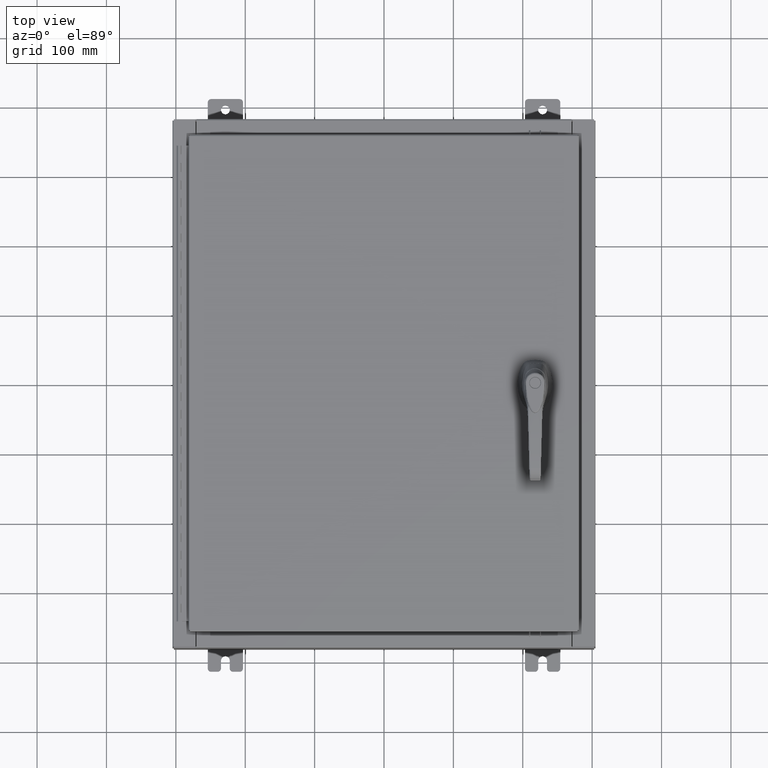
[diagram: clean part render]
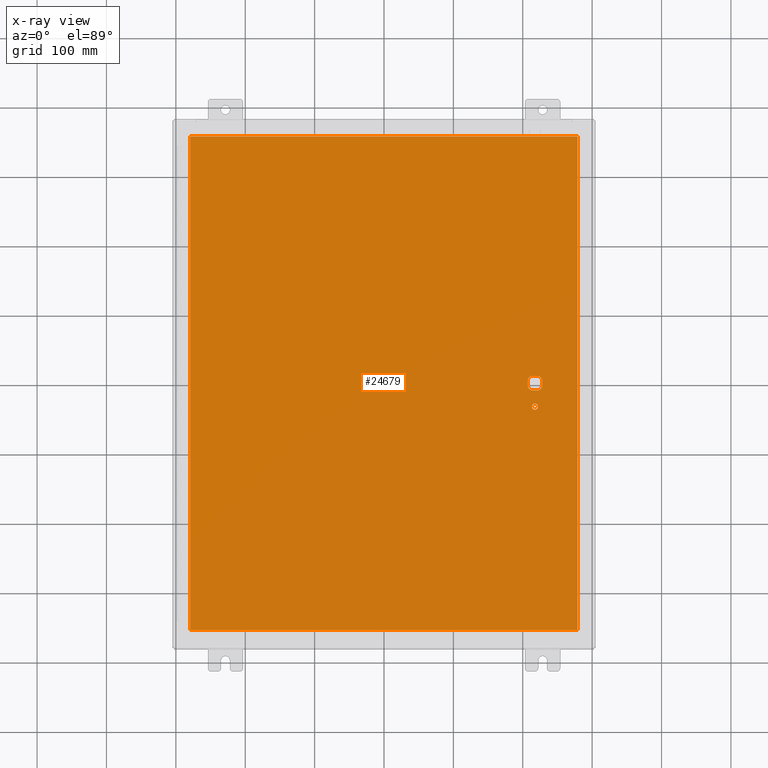
[diagram: x-ray — body ghosted, one internal face saturated and labeled with its STEP entity id]
A machine part, top view, then the same camera in x-ray: the body is ghosted and one INTERNAL B-rep face — a face not visible from any outside direction — is saturated and labeled: STEP entity #24679.
In plain terms, the highlighted planar face has unit normal (0, 0, -1).
Its self-contained STEP definition (entity closure, byte-faithful):
#4082 = AXIS2_PLACEMENT_3D ( 'NONE', #72683, #17764, #81917 ) ;
#4381 = PLANE ( 'NONE',  #40599 ) ;
#4849 = DIRECTION ( 'NONE',  ( -1.000000000000000000, 0.0000000000000000000, 0.0000000000000000000 ) ) ;
#5151 = CARTESIAN_POINT ( 'NONE',  ( 0.0000000000000000000, 0.4029999999999252000, -0.07470000000000003000 ) ) ;
#7073 = EDGE_LOOP ( 'NONE', ( #113550, #79321, #73295, #90613 ) ) ;
#13572 = DIRECTION ( 'NONE',  ( -1.000000000000000000, 0.0000000000000000000, -0.0000000000000000000 ) ) ;
#15467 = CARTESIAN_POINT ( 'NONE',  ( 8.377772629243690300, 0.4029999999999252000, -0.07470000000000003000 ) ) ;
#15975 = DIRECTION ( 'NONE',  ( -0.0000000000000000000, -0.0000000000000000000, 1.000000000000000000 ) ) ;
#17205 = CARTESIAN_POINT ( 'NONE',  ( 8.577999999999999400, 0.0000000000000000000, -0.07470000000000003000 ) ) ;
#17764 = DIRECTION ( 'NONE',  ( -0.0000000000000000000, -0.0000000000000000000, 1.000000000000000000 ) ) ;
#18291 = DIRECTION ( 'NONE',  ( -1.000000000000000000, -0.0000000000000000000, -0.0000000000000000000 ) ) ;
#18485 = DIRECTION ( 'NONE',  ( 0.0000000000000000000, -1.000000000000000000, 0.0000000000000000000 ) ) ;
#19037 = DIRECTION ( 'NONE',  ( 0.0000000000000000000, 1.000000000000000000, 0.0000000000000000000 ) ) ;
#19388 = VERTEX_POINT ( 'NONE', #61626 ) ;
#20414 = VERTEX_POINT ( 'NONE', #33385 ) ;
#21628 = VERTEX_POINT ( 'NONE', #54571 ) ;
#22916 = CIRCLE ( 'NONE', #35095, 0.4499999999999156900 ) ;
#24679 = ADVANCED_FACE ( 'NONE', ( #41071, #46733, #116823 ), #4381, .T. ) ;
#26439 = DIRECTION ( 'NONE',  ( -1.000000000000000000, 8.881784197001256300E-016, 0.0000000000000000000 ) ) ;
#26772 = LINE ( 'NONE', #59983, #78445 ) ;
#27259 = CIRCLE ( 'NONE', #30713, 0.4499999999999156900 ) ;
#27401 = CARTESIAN_POINT ( 'NONE',  ( 8.980999999999925300, -0.2002273707563075900, -0.07470000000000003000 ) ) ;
#30713 = AXIS2_PLACEMENT_3D ( 'NONE', #70870, #15975, #80140 ) ;
#30765 = AXIS2_PLACEMENT_3D ( 'NONE', #38811, #102777, #48019 ) ;
#31611 = EDGE_CURVE ( 'NONE', #56814, #106417, #101728, .T. ) ;
#33385 = CARTESIAN_POINT ( 'NONE',  ( 8.778227370756310300, 0.4029999999999250300, -0.07470000000000003000 ) ) ;
#35095 = AXIS2_PLACEMENT_3D ( 'NONE', #17205, #81362, #26439 ) ;
#35352 = CARTESIAN_POINT ( 'NONE',  ( 8.980999999999925300, 2.450686610769032800E-014, -0.07470000000000003000 ) ) ;
#35492 = LINE ( 'NONE', #46545, #84285 ) ;
#36340 = LINE ( 'NONE', #105482, #82227 ) ;
#37656 = EDGE_CURVE ( 'NONE', #21628, #76617, #77169, .T. ) ;
#37797 = CARTESIAN_POINT ( 'NONE',  ( 8.577999999999999400, 0.0000000000000000000, -0.07470000000000003000 ) ) ;
#37902 = EDGE_CURVE ( 'NONE', #89958, #21628, #35492, .T. ) ;
#38712 = CARTESIAN_POINT ( 'NONE',  ( 8.778227370756310300, -0.4029999999999252000, -0.07470000000000003000 ) ) ;
#38811 = CARTESIAN_POINT ( 'NONE',  ( 8.577999999999999400, -1.338000000000000100, -0.07470000000000003000 ) ) ;
#40331 = DIRECTION ( 'NONE',  ( 1.000000000000000000, -0.0000000000000000000, -0.0000000000000000000 ) ) ;
#40599 = AXIS2_PLACEMENT_3D ( 'NONE', #95651, #68452, #13572 ) ;
#40731 = CARTESIAN_POINT ( 'NONE',  ( -10.99029999999999600, -14.00629999999999800, -0.07470000000000019700 ) ) ;
#40760 = EDGE_CURVE ( 'NONE', #74730, #114186, #69519, .T. ) ;
#41053 = VERTEX_POINT ( 'NONE', #98414 ) ;
#41071 = FACE_BOUND ( 'NONE', #53326, .T. ) ;
#42395 = EDGE_CURVE ( 'NONE', #92956, #89958, #66398, .T. ) ;
#44167 = DIRECTION ( 'NONE',  ( 2.728745808672812900E-015, -1.000000000000000000, 0.0000000000000000000 ) ) ;
#45892 = EDGE_CURVE ( 'NONE', #106417, #48625, #26772, .T. ) ;
#46545 = CARTESIAN_POINT ( 'NONE',  ( -10.99030000000000000, 14.00630000000000100, -0.07470000000000019700 ) ) ;
#46668 = CARTESIAN_POINT ( 'NONE',  ( 8.175000000000073500, -0.2002273707563079800, -0.07470000000000003000 ) ) ;
#46733 = FACE_OUTER_BOUND ( 'NONE', #7073, .T. ) ;
#46972 = DIRECTION ( 'NONE',  ( -1.000000000000000000, 0.0000000000000000000, 0.0000000000000000000 ) ) ;
#48019 = DIRECTION ( 'NONE',  ( -1.000000000000000000, 0.0000000000000000000, 0.0000000000000000000 ) ) ;
#48131 = VECTOR ( 'NONE', #19037, 39.37007874015748100 ) ;
#48625 = VERTEX_POINT ( 'NONE', #46668 ) ;
#50817 = DIRECTION ( 'NONE',  ( 0.0000000000000000000, -1.000000000000000000, 0.0000000000000000000 ) ) ;
#53101 = VERTEX_POINT ( 'NONE', #112196 ) ;
#53326 = EDGE_LOOP ( 'NONE', ( #82231, #105634 ) ) ;
#54571 = CARTESIAN_POINT ( 'NONE',  ( -10.99030000000000000, -14.00629999999999600, -0.07470000000000000300 ) ) ;
#56814 = VERTEX_POINT ( 'NONE', #15467 ) ;
#58413 = EDGE_CURVE ( 'NONE', #48625, #41053, #22916, .T. ) ;
#59698 = DIRECTION ( 'NONE',  ( -0.0000000000000000000, -0.0000000000000000000, 1.000000000000000000 ) ) ;
#59983 = CARTESIAN_POINT ( 'NONE',  ( 8.175000000000073500, 0.0000000000000000000, -0.07470000000000003000 ) ) ;
#60885 = ORIENTED_EDGE ( 'NONE', *, *, #45892, .T. ) ;
#60934 = CARTESIAN_POINT ( 'NONE',  ( -10.99030000000000000, 14.00629999999999800, -0.07470000000000000300 ) ) ;
#61626 = CARTESIAN_POINT ( 'NONE',  ( 8.749500000000001200, -1.338000000000000100, -0.07470000000000003000 ) ) ;
#63254 = ORIENTED_EDGE ( 'NONE', *, *, #40760, .F. ) ;
#64863 = EDGE_CURVE ( 'NONE', #71345, #114186, #27259, .T. ) ;
#66398 = LINE ( 'NONE', #91576, #112183 ) ;
#66616 = VECTOR ( 'NONE', #44167, 39.37007874015748100 ) ;
#67054 = EDGE_LOOP ( 'NONE', ( #112329, #63254, #78111, #67748, #75439, #60885, #68111, #93705 ) ) ;
#67748 = ORIENTED_EDGE ( 'NONE', *, *, #104258, .T. ) ;
#68111 = ORIENTED_EDGE ( 'NONE', *, *, #58413, .T. ) ;
#68452 = DIRECTION ( 'NONE',  ( 0.0000000000000000000, 0.0000000000000000000, -1.000000000000000000 ) ) ;
#69519 = LINE ( 'NONE', #35352, #66616 ) ;
#69736 = CIRCLE ( 'NONE', #30765, 0.1715000000000011500 ) ;
#70183 = LINE ( 'NONE', #5151, #115916 ) ;
#70870 = CARTESIAN_POINT ( 'NONE',  ( 8.577999999999999400, 0.0000000000000000000, -0.07470000000000003000 ) ) ;
#71345 = VERTEX_POINT ( 'NONE', #38712 ) ;
#71392 = EDGE_CURVE ( 'NONE', #41053, #71345, #36340, .T. ) ;
#72683 = CARTESIAN_POINT ( 'NONE',  ( 8.577999999999999400, -1.338000000000000100, -0.07470000000000003000 ) ) ;
#73295 = ORIENTED_EDGE ( 'NONE', *, *, #37902, .F. ) ;
#74730 = VERTEX_POINT ( 'NONE', #88686 ) ;
#75439 = ORIENTED_EDGE ( 'NONE', *, *, #31611, .T. ) ;
#76617 = VERTEX_POINT ( 'NONE', #93371 ) ;
#77169 = LINE ( 'NONE', #40731, #80017 ) ;
#78111 = ORIENTED_EDGE ( 'NONE', *, *, #115114, .T. ) ;
#78445 = VECTOR ( 'NONE', #50817, 39.37007874015748100 ) ;
#78486 = DIRECTION ( 'NONE',  ( -1.000000000000000000, 0.0000000000000000000, 0.0000000000000000000 ) ) ;
#79321 = ORIENTED_EDGE ( 'NONE', *, *, #37656, .F. ) ;
#80017 = VECTOR ( 'NONE', #40331, 39.37007874015748100 ) ;
#80140 = DIRECTION ( 'NONE',  ( -1.000000000000000000, 1.776356839400251300E-015, 0.0000000000000000000 ) ) ;
#81362 = DIRECTION ( 'NONE',  ( -0.0000000000000000000, -0.0000000000000000000, 1.000000000000000000 ) ) ;
#81917 = DIRECTION ( 'NONE',  ( -1.000000000000000000, 0.0000000000000000000, 0.0000000000000000000 ) ) ;
#82022 = EDGE_CURVE ( 'NONE', #53101, #19388, #108096, .T. ) ;
#82227 = VECTOR ( 'NONE', #114652, 39.37007874015748100 ) ;
#82231 = ORIENTED_EDGE ( 'NONE', *, *, #108214, .T. ) ;
#82845 = AXIS2_PLACEMENT_3D ( 'NONE', #37797, #101748, #46972 ) ;
#84285 = VECTOR ( 'NONE', #18485, 39.37007874015748100 ) ;
#86910 = EDGE_CURVE ( 'NONE', #76617, #92956, #105379, .T. ) ;
#87770 = CIRCLE ( 'NONE', #105401, 0.4499999999999156900 ) ;
#88686 = CARTESIAN_POINT ( 'NONE',  ( 8.980999999999925300, 0.2002273707563080300, -0.07470000000000003000 ) ) ;
#89958 = VERTEX_POINT ( 'NONE', #60934 ) ;
#90613 = ORIENTED_EDGE ( 'NONE', *, *, #42395, .F. ) ;
#91576 = CARTESIAN_POINT ( 'NONE',  ( 10.99030000000000000, 14.00629999999999800, -0.07470000000000019700 ) ) ;
#92122 = CARTESIAN_POINT ( 'NONE',  ( 10.99030000000000000, 14.00629999999999800, -0.07470000000000000300 ) ) ;
#92956 = VERTEX_POINT ( 'NONE', #92122 ) ;
#93371 = CARTESIAN_POINT ( 'NONE',  ( 10.99030000000000000, -14.00629999999999800, -0.07470000000000000300 ) ) ;
#93705 = ORIENTED_EDGE ( 'NONE', *, *, #71392, .T. ) ;
#95651 = CARTESIAN_POINT ( 'NONE',  ( 0.0000000000000000000, 0.0000000000000000000, -0.07470000000000000300 ) ) ;
#98414 = CARTESIAN_POINT ( 'NONE',  ( 8.377772629243690300, -0.4029999999999250300, -0.07470000000000003000 ) ) ;
#100345 = CARTESIAN_POINT ( 'NONE',  ( 8.175000000000073500, 0.2002273707563080300, -0.07470000000000003000 ) ) ;
#101475 = CARTESIAN_POINT ( 'NONE',  ( 10.99030000000000000, -14.00629999999999800, -0.07470000000000019700 ) ) ;
#101728 = CIRCLE ( 'NONE', #82845, 0.4499999999999156900 ) ;
#101748 = DIRECTION ( 'NONE',  ( -0.0000000000000000000, -0.0000000000000000000, 1.000000000000000000 ) ) ;
#102777 = DIRECTION ( 'NONE',  ( -0.0000000000000000000, -0.0000000000000000000, 1.000000000000000000 ) ) ;
#104258 = EDGE_CURVE ( 'NONE', #20414, #56814, #70183, .T. ) ;
#105379 = LINE ( 'NONE', #101475, #48131 ) ;
#105401 = AXIS2_PLACEMENT_3D ( 'NONE', #114455, #59698, #4849 ) ;
#105482 = CARTESIAN_POINT ( 'NONE',  ( 0.0000000000000000000, -0.4029999999999252000, -0.07470000000000003000 ) ) ;
#105634 = ORIENTED_EDGE ( 'NONE', *, *, #82022, .T. ) ;
#106417 = VERTEX_POINT ( 'NONE', #100345 ) ;
#108096 = CIRCLE ( 'NONE', #4082, 0.1715000000000011500 ) ;
#108214 = EDGE_CURVE ( 'NONE', #19388, #53101, #69736, .T. ) ;
#112183 = VECTOR ( 'NONE', #18291, 39.37007874015748100 ) ;
#112196 = CARTESIAN_POINT ( 'NONE',  ( 8.406499999999999400, -1.338000000000000100, -0.07470000000000003000 ) ) ;
#112329 = ORIENTED_EDGE ( 'NONE', *, *, #64863, .T. ) ;
#113550 = ORIENTED_EDGE ( 'NONE', *, *, #86910, .F. ) ;
#114186 = VERTEX_POINT ( 'NONE', #27401 ) ;
#114455 = CARTESIAN_POINT ( 'NONE',  ( 8.577999999999999400, 0.0000000000000000000, -0.07470000000000003000 ) ) ;
#114652 = DIRECTION ( 'NONE',  ( 1.000000000000000000, 0.0000000000000000000, 0.0000000000000000000 ) ) ;
#115114 = EDGE_CURVE ( 'NONE', #74730, #20414, #87770, .T. ) ;
#115916 = VECTOR ( 'NONE', #78486, 39.37007874015748100 ) ;
#116823 = FACE_BOUND ( 'NONE', #67054, .T. ) ;